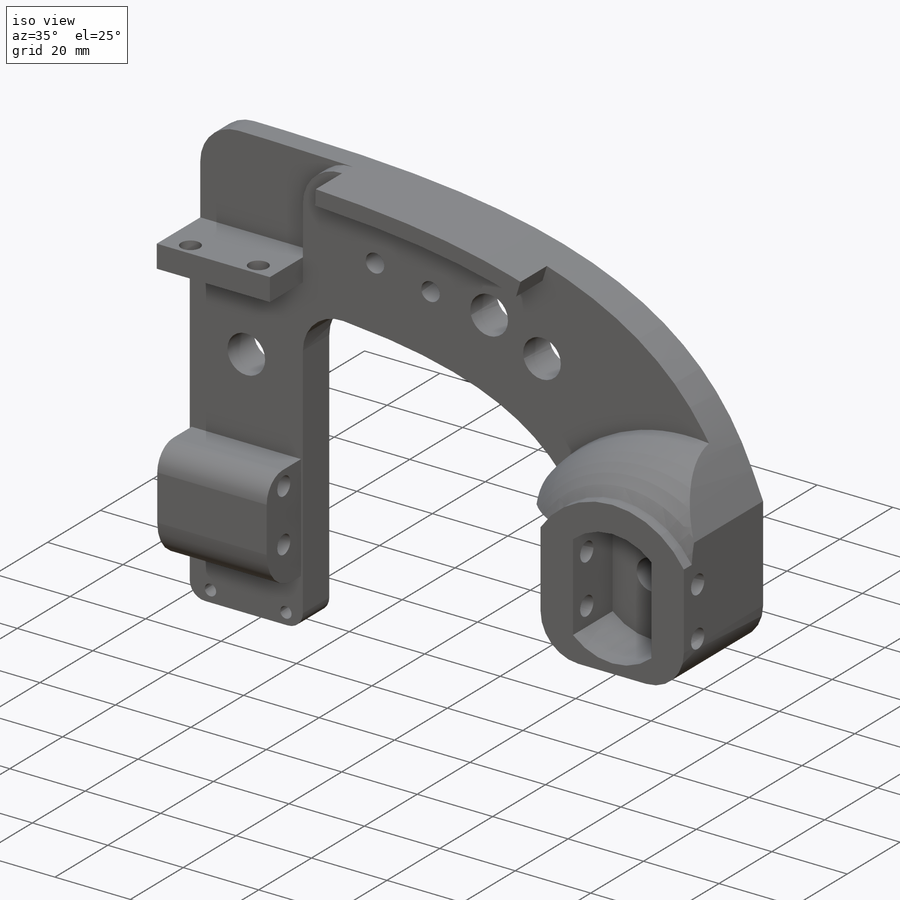
[diagram: iso view]
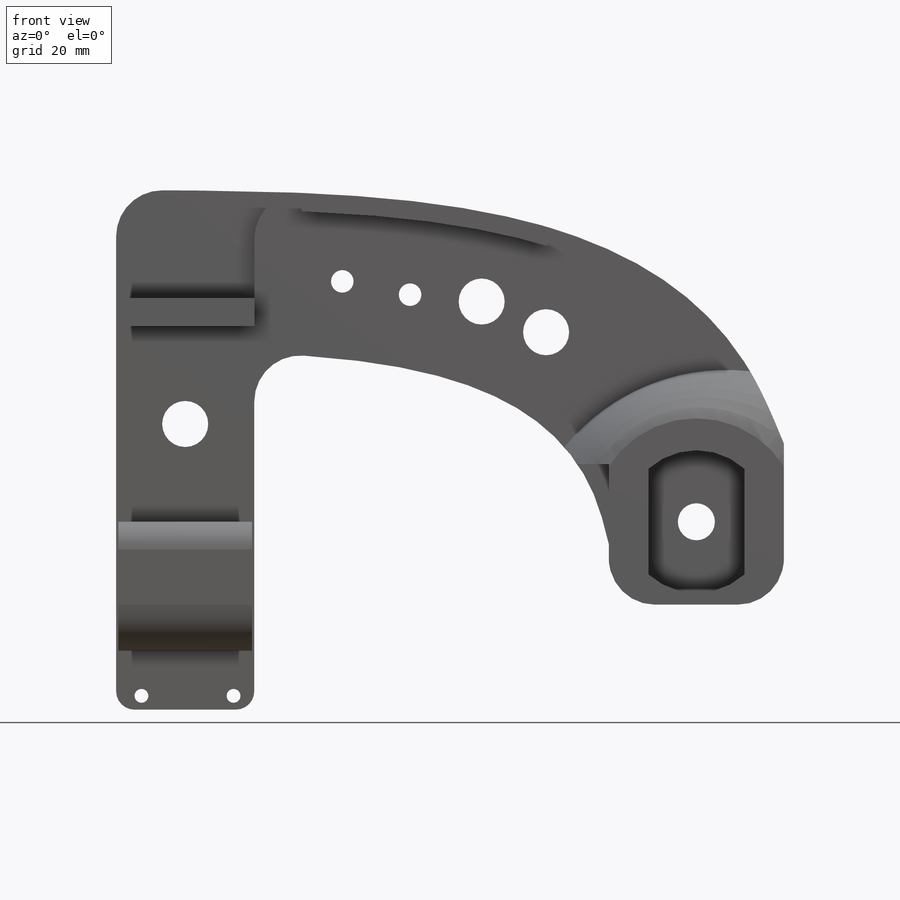
[diagram: front view]
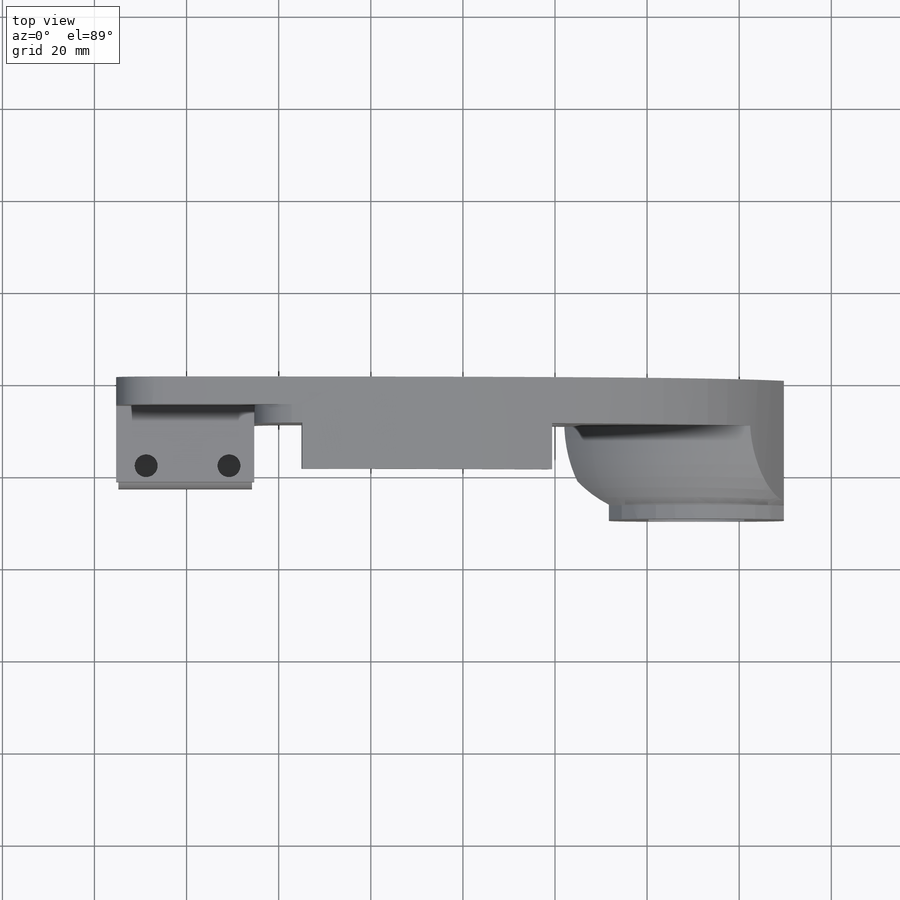
[diagram: top view]
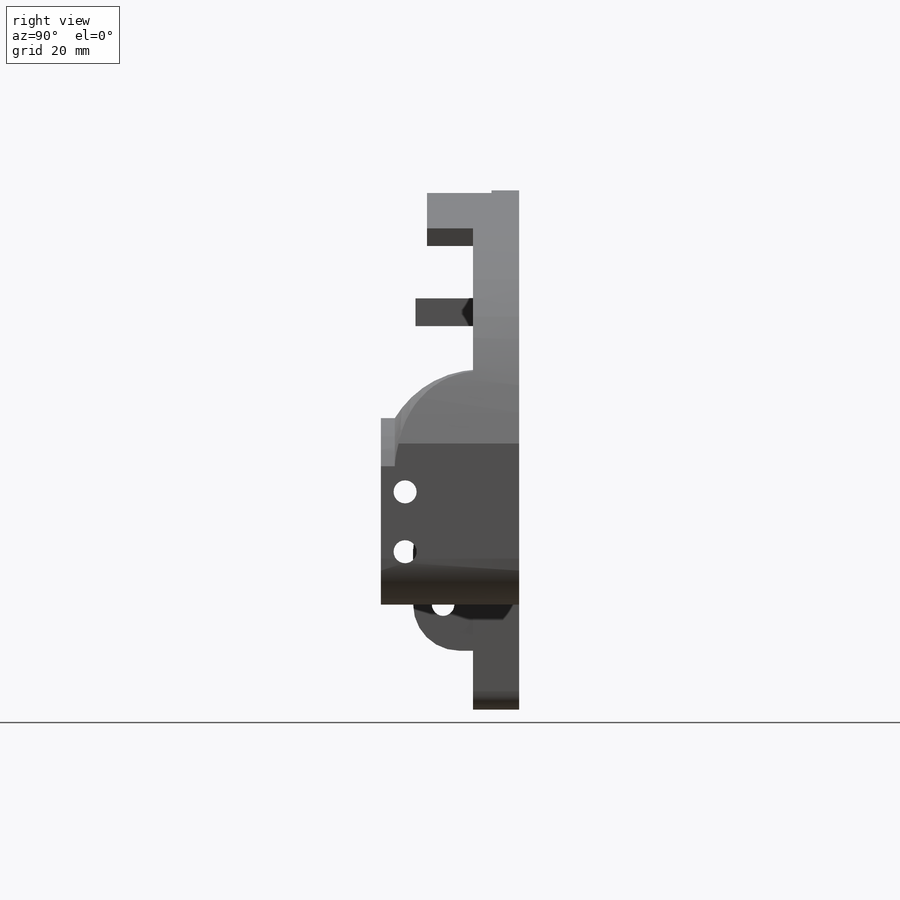
[diagram: right view]
SOLIDWORKS PART (.sldprt)
format: sldprt  version: not decoded by parser v0  size: 542,720 bytes
history: native  units: mm
features: sketch x22, cut_extrude x11, extrude x6, fillet x6, hole x2, material x1 (+14 scaffold rows collapsed)
feature tree (62):
  scaffold x14  (default folders/planes/origin — collapsed)
  material  "PLA Black"
  sketch  "Sketch1"  dims[c1.D1=29.0mm c1.D2=30.0mm c1.D3=35.0mm c1.D4=130.0mm c2.D1=145.0mm c2.D2=38.0mm c2.D4=35.0mm c2.D5=90.0mm c3.D1=35.0mm]
  extrude  "Extrude1"  Depth=30mm
  sketch  "Sketch2"  dims[D2=30.0mm D1=18.0mm]
  sketch  "Sketch4"  dims[D1=0.0mm]
  cut_extrude  "Extrude3"  Depth=20mm
  sketch  "Sketch5"  dims[c1.D1=5.6mm c1.D2=30.0mm c1.D3=6.0mm c2.D1=23.5mm]
  extrude  "Extrude4"  Depth=12.5mm
  sketch  "Sketch6"  dims[D1=30.0mm D2=65.0mm]
  extrude  "Extrude7"  [1 undecoded]
  sketch  "Sketch7"  dims[D1=28.0mm D2=29.0mm]
  extrude  "Extrude8"  Depth=13mm
  hole  "Ø4.9 (4.9) Diameter Hole1"  Diameter=4.9mm Depth=54.5mm
  sketch  "3DSketch1"  dims[D1=14.0mm D2=6.5mm]
  sketch  "Sketch8"  dims[hole-wizard template sketch: 46 standard entries collapsed; hole parameters kept: c15.Hole Dia.=4.9mm c15.Hole Depth=54.5mm c15.D3=~14.816244mm c15.Drill Angle=180.0deg]
  sketch  "Sketch10"  dims[D1=12.8mm]
  extrude  "Extrude9"  [1 undecoded]
  hole  "Ø3.0 (3) Diameter Hole2"  Diameter=3mm Depth=15mm
  sketch  "3DSketch2"  dims[D1=5.5mm D2=3.0mm D3=3.0mm D4=20.0mm]
  sketch  "Sketch11"  dims[hole-wizard template sketch: 49 standard entries collapsed; hole parameters kept: c15.Drill Angle=180.0deg]
  sketch  "Sketch12"
  cut_extrude  "Extrude10"  Depth=4mm
  fillet  "Fillet1"  Radius=10mm
  sketch  "Sketch13"  dims[D1=31.0mm D2=20.8mm]
  cut_extrude  "Extrude11"  Depth=15mm
  sketch  "Sketch14"  dims[D1=5.0mm D2=13.0mm D3=5.25mm]
  cut_extrude  "Extrude12"  Depth=25mm
  sketch  "Sketch15"  dims[D1=45.0mm]
  cut_extrude  "Extrude13"  Depth=3mm
  sketch  "Sketch16"  dims[D1=10.0mm D2=23.0mm]
  cut_extrude  "Extrude14"  Depth=22mm
  sketch  "Sketch17"  dims[D1=8.05mm]
  cut_extrude  "Extrude15"  [1 undecoded]
  sketch  "Sketch18"  dims[D1=16.0mm]
  cut_extrude  "Extrude16"  Depth=6mm
  sketch  "Sketch19"  dims[D4=5.0mm D1=18.0mm D2=6.5mm D3=13.0mm]
  cut_extrude  "Cut-Extrude1"  Depth=10mm
  fillet  "Fillet2"  Radius=20mm
  fillet  "Fillet6"  Radius=10mm
  fillet  "Fillet7"  Radius=6mm
  fillet  "Fillet8"  Radius=10mm
  fillet  "Fillet9"  Radius=4mm
  sketch  "Sketch20"  dims[D1=10.0mm]
  cut_extrude  "Extrude17"  Depth=20mm
  sketch  "Sketch22"  dims[D3=~54.26614mm D1=0.0mm D2=4.0mm]
  extrude  "Extrude18"  Depth=10mm
  sketch  "Sketch23"  dims[D1=4.9mm]
  cut_extrude  "Extrude19"  Depth=30mm
decode coverage: 43 of 47 modeling features carry decoded parameters
note: ~ marks probable driven/reference dimensions
note: 3 parameter values undecoded
summary: no parameter record found for 3 features
note: suppression state not decoded; provenance and decode notes live in map.json
